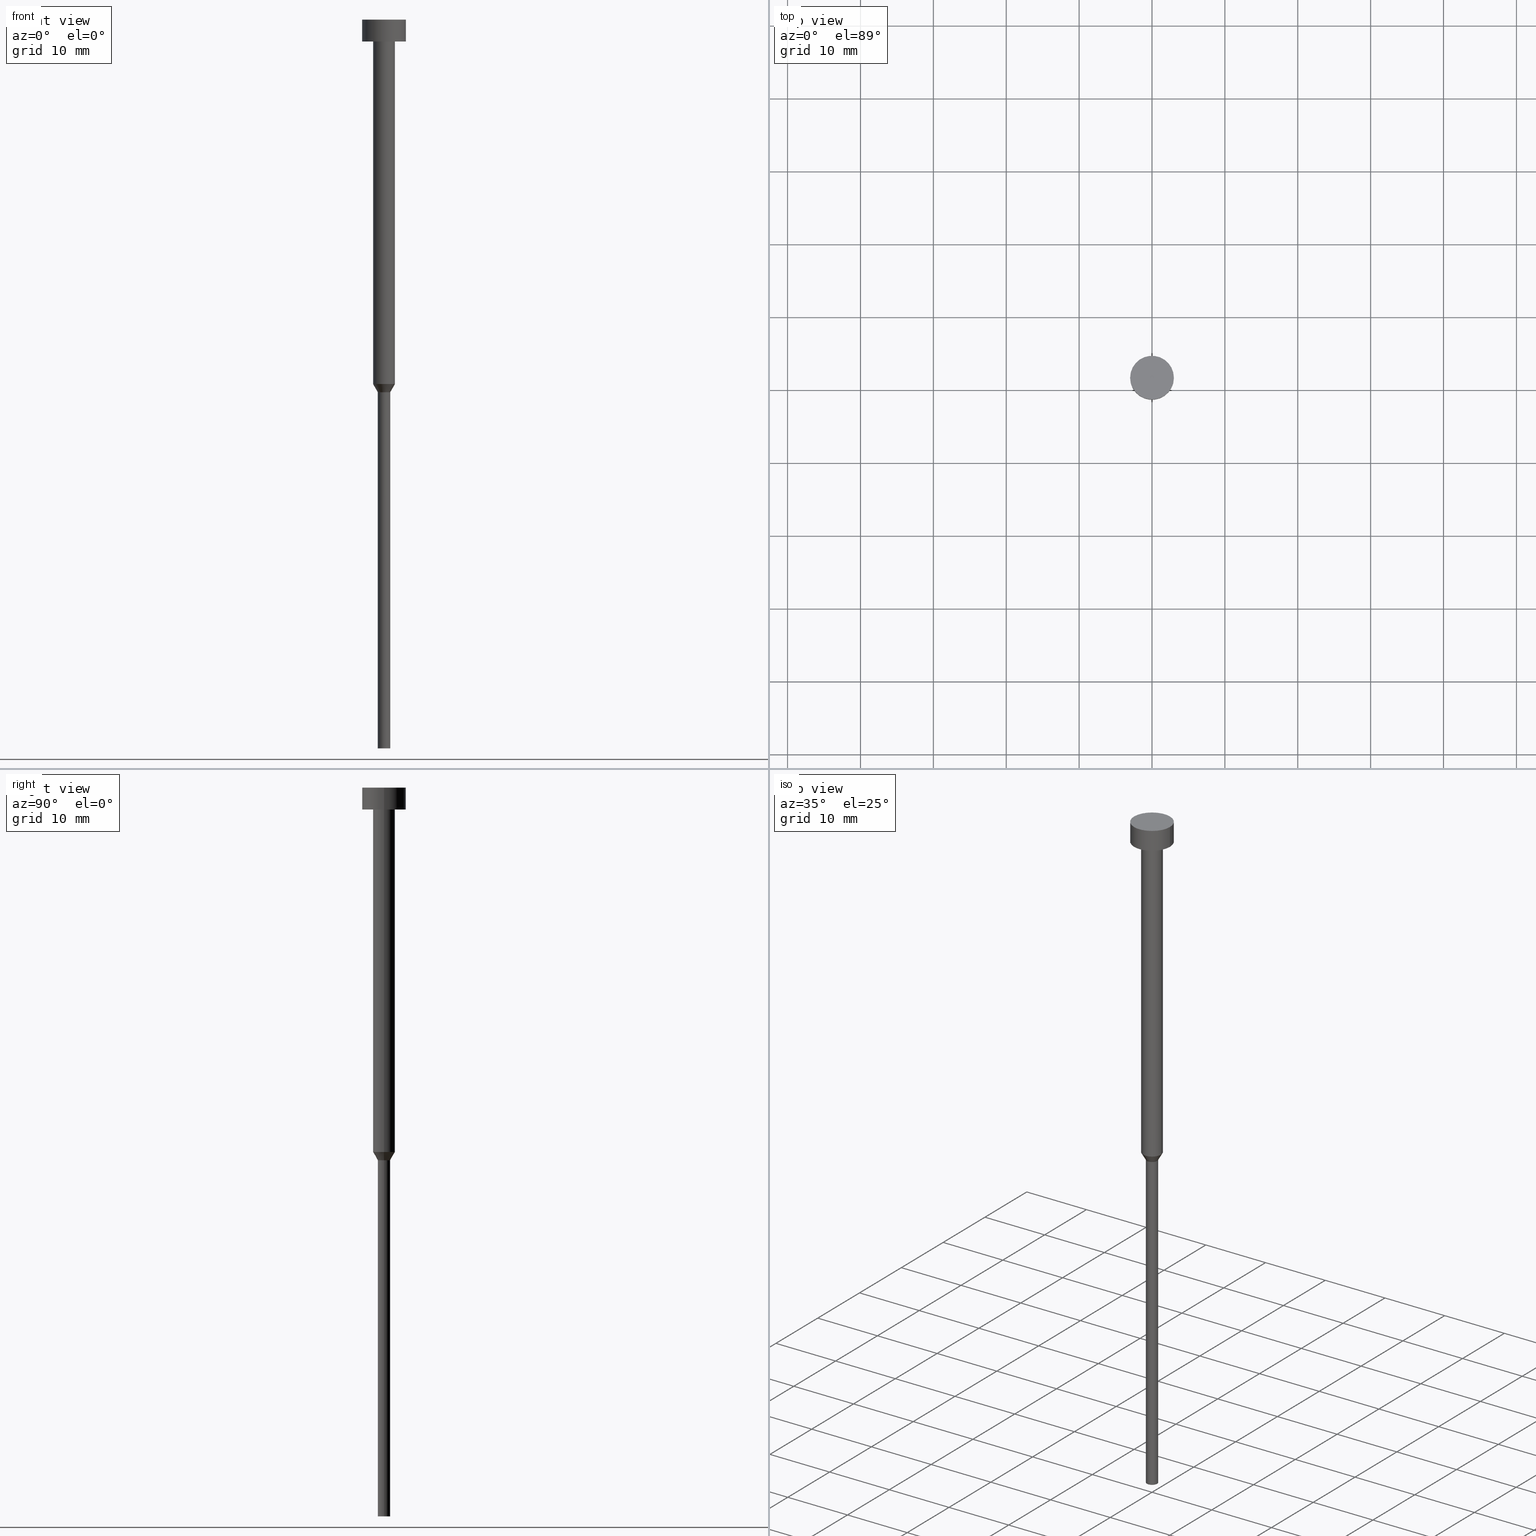
[diagram: canonical four-view strip — front | top / right | iso, engineering-drawing reading convention]
A machine part, canonical four-view strip (front | top / right | iso — engineering-drawing reading convention). The complete STEP part file that produces these views, byte-faithful:
ISO-10303-21;
HEADER;
FILE_DESCRIPTION (( 'STEP AP203' ),
    '1' );
FILE_NAME ('e03b.STEP',
    '2023-02-13T10:56:45',
    ( '' ),
    ( '' ),
    'SwSTEP 2.0',
    'SolidWorks 2019',
    '' );
FILE_SCHEMA (( 'CONFIG_CONTROL_DESIGN' ));
ENDSEC;

DATA;
#1 = DIRECTION ( 'NONE',  ( -0.000000000000000000, -0.000000000000000000, 1.000000000000000000 ) ) ;
#2 = DIRECTION ( 'NONE',  ( -0.000000000000000000, -0.000000000000000000, 1.000000000000000000 ) ) ;
#3 = CARTESIAN_POINT ( 'NONE',  ( 0.000000000000000000, 0.000000000000000000, -50.00000000000000000 ) ) ;
#4 = DIRECTION ( 'NONE',  ( -0.000000000000000000, -0.000000000000000000, 1.000000000000000000 ) ) ;
#5 = ORIENTED_EDGE ( 'NONE', *, *, #164, .F. ) ;
#6 = CIRCLE ( 'NONE', #282, 0.8499999999999998668 ) ;
#7 = CYLINDRICAL_SURFACE ( 'NONE', #74, 0.8499999999999998668 ) ;
#8 = CARTESIAN_POINT ( 'NONE',  ( -3.000000000000000000, 3.673940397442059868E-16, 0.000000000000000000 ) ) ;
#9 = SECURITY_CLASSIFICATION_LEVEL ( 'unclassified' ) ;
#10 = CC_DESIGN_PERSON_AND_ORGANIZATION_ASSIGNMENT ( #211, #180, ( #212 ) ) ;
#11 = ORIENTED_EDGE ( 'NONE', *, *, #23, .T. ) ;
#12 = EDGE_CURVE ( 'NONE', #46, #157, #241, .T. ) ;
#13 =( NAMED_UNIT ( * ) PLANE_ANGLE_UNIT ( ) SI_UNIT ( $, .RADIAN. ) );
#14 = CC_DESIGN_PERSON_AND_ORGANIZATION_ASSIGNMENT ( #283, #68, ( #209 ) ) ;
#15 = DATE_TIME_ROLE ( 'creation_date' ) ;
#16 = VERTEX_POINT ( 'NONE', #337 ) ;
#17 = ORIENTED_EDGE ( 'NONE', *, *, #102, .F. ) ;
#18 = AXIS2_PLACEMENT_3D ( 'NONE', #303, #38, #253 ) ;
#19 = CARTESIAN_POINT ( 'NONE',  ( 0.000000000000000000, 0.000000000000000000, -50.00000000000000000 ) ) ;
#20 = ADVANCED_FACE ( 'NONE', ( #181 ), #171, .T. ) ;
#21 = EDGE_LOOP ( 'NONE', ( #50, #244 ) ) ;
#22 = ORIENTED_EDGE ( 'NONE', *, *, #293, .T. ) ;
#23 = EDGE_CURVE ( 'NONE', #16, #46, #120, .T. ) ;
#24 = PLANE ( 'NONE',  #196 ) ;
#25 = LINE ( 'NONE', #275, #286 ) ;
#26 = CC_DESIGN_SECURITY_CLASSIFICATION ( #185, ( #212 ) ) ;
#27 = CYLINDRICAL_SURFACE ( 'NONE', #93, 1.500000000000000000 ) ;
#28 = CARTESIAN_POINT ( 'NONE',  ( -0.8499999999999998668, 1.040949779275250017E-16, 0.000000000000000000 ) ) ;
#29 = DIRECTION ( 'NONE',  ( -0.000000000000000000, -0.000000000000000000, 1.000000000000000000 ) ) ;
#30 = FACE_OUTER_BOUND ( 'NONE', #44, .T. ) ;
#31 = EDGE_CURVE ( 'NONE', #234, #76, #128, .T. ) ;
#32 = DIRECTION ( 'NONE',  ( -1.000000000000000000, 0.000000000000000000, -0.000000000000000000 ) ) ;
#33 = LINE ( 'NONE', #8, #315 ) ;
#34 = DIRECTION ( 'NONE',  ( -0.000000000000000000, -0.000000000000000000, 1.000000000000000000 ) ) ;
#35 = CARTESIAN_POINT ( 'NONE',  ( 0.000000000000000000, 0.000000000000000000, -51.12583302491977122 ) ) ;
#36 = PLANE ( 'NONE',  #48 ) ;
#37 = VERTEX_POINT ( 'NONE', #330 ) ;
#38 = DIRECTION ( 'NONE',  ( 0.000000000000000000, 0.000000000000000000, 1.000000000000000000 ) ) ;
#39 = APPROVAL_DATE_TIME ( #177, #75 ) ;
#40 = APPROVAL_ROLE ( '' ) ;
#41 = APPROVAL_DATE_TIME ( #335, #336 ) ;
#42 = APPROVAL_STATUS ( 'not_yet_approved' ) ;
#43 = AXIS2_PLACEMENT_3D ( 'NONE', #79, #327, #243 ) ;
#44 = EDGE_LOOP ( 'NONE', ( #214, #137, #264, #89 ) ) ;
#45 = DATE_TIME_ROLE ( 'classification_date' ) ;
#46 = VERTEX_POINT ( 'NONE', #91 ) ;
#47 = CC_DESIGN_PERSON_AND_ORGANIZATION_ASSIGNMENT ( #146, #280, ( #187 ) ) ;
#48 = AXIS2_PLACEMENT_3D ( 'NONE', #145, #252, #153 ) ;
#49 = CC_DESIGN_APPROVAL ( #336, ( #212 ) ) ;
#50 = ORIENTED_EDGE ( 'NONE', *, *, #106, .T. ) ;
#51 = DIRECTION ( 'NONE',  ( 1.000000000000000000, 0.000000000000000000, 0.000000000000000000 ) ) ;
#52 = FACE_OUTER_BOUND ( 'NONE', #349, .T. ) ;
#53 = DIRECTION ( 'NONE',  ( -0.000000000000000000, -0.000000000000000000, 1.000000000000000000 ) ) ;
#54 = DESIGN_CONTEXT ( 'detailed design', #310, 'design' ) ;
#55 = CARTESIAN_POINT ( 'NONE',  ( 0.8499999999999998668, 0.000000000000000000, -51.12583302491977122 ) ) ;
#56 = EDGE_LOOP ( 'NONE', ( #288, #115 ) ) ;
#57 = ADVANCED_FACE ( 'NONE', ( #203 ), #36, .T. ) ;
#58 = DIRECTION ( 'NONE',  ( 0.000000000000000000, 0.000000000000000000, -1.000000000000000000 ) ) ;
#59 = CC_DESIGN_PERSON_AND_ORGANIZATION_ASSIGNMENT ( #229, #132, ( #185 ) ) ;
#60 = CARTESIAN_POINT ( 'NONE',  ( 0.000000000000000000, 0.000000000000000000, -3.673940397442059868E-16 ) ) ;
#61 = MANIFOLD_SOLID_BREP ( 'Rotovat1', #62 ) ;
#62 = CLOSED_SHELL ( 'NONE', ( #66, #351, #206, #179, #86, #175, #20, #341, #307, #268, #57 ) ) ;
#63 = APPROVAL_ROLE ( '' ) ;
#64 = VERTEX_POINT ( 'NONE', #216 ) ;
#65 = CYLINDRICAL_SURFACE ( 'NONE', #84, 1.500000000000000000 ) ;
#66 = ADVANCED_FACE ( 'NONE', ( #30 ), #96, .T. ) ;
#67 = CARTESIAN_POINT ( 'NONE',  ( 0.000000000000000000, 0.000000000000000000, -3.673940397442059868E-16 ) ) ;
#68 = PERSON_AND_ORGANIZATION_ROLE ( 'creator' ) ;
#69 = DIRECTION ( 'NONE',  ( 1.000000000000000000, 0.000000000000000000, 0.000000000000000000 ) ) ;
#70 = CARTESIAN_POINT ( 'NONE',  ( 3.000000000000000000, 0.000000000000000000, -3.000000000000000888 ) ) ;
#71 = DATE_AND_TIME ( #240, #306 ) ;
#72 = ORIENTED_EDGE ( 'NONE', *, *, #325, .T. ) ;
#73 = ORIENTED_EDGE ( 'NONE', *, *, #199, .T. ) ;
#74 = AXIS2_PLACEMENT_3D ( 'NONE', #139, #1, #224 ) ;
#75 = APPROVAL ( #123, 'NEUR�EN�' ) ;
#76 = VERTEX_POINT ( 'NONE', #304 ) ;
#77 = CIRCLE ( 'NONE', #348, 1.500000000000000000 ) ;
#78 = EDGE_CURVE ( 'NONE', #197, #266, #220, .T. ) ;
#79 = CARTESIAN_POINT ( 'NONE',  ( 0.000000000000000000, 0.000000000000000000, 0.000000000000000000 ) ) ;
#80 = EDGE_CURVE ( 'NONE', #233, #37, #154, .T. ) ;
#81 = DIRECTION ( 'NONE',  ( -0.000000000000000000, -0.000000000000000000, 1.000000000000000000 ) ) ;
#82 = CARTESIAN_POINT ( 'NONE',  ( 3.000000000000000000, 0.000000000000000000, -3.673940397442059868E-16 ) ) ;
#83 = ORIENTED_EDGE ( 'NONE', *, *, #305, .F. ) ;
#84 = AXIS2_PLACEMENT_3D ( 'NONE', #333, #98, #174 ) ;
#85 = DIRECTION ( 'NONE',  ( 1.000000000000000000, 0.000000000000000000, 0.000000000000000000 ) ) ;
#86 = ADVANCED_FACE ( 'NONE', ( #172 ), #278, .T. ) ;
#87 = CARTESIAN_POINT ( 'NONE',  ( 0.000000000000000000, 0.000000000000000000, -100.0000000000000000 ) ) ;
#88 = DIRECTION ( 'NONE',  ( -0.000000000000000000, -0.000000000000000000, 1.000000000000000000 ) ) ;
#89 = ORIENTED_EDGE ( 'NONE', *, *, #169, .F. ) ;
#90 = CARTESIAN_POINT ( 'NONE',  ( 0.000000000000000000, 0.000000000000000000, -3.000000000000000888 ) ) ;
#91 = CARTESIAN_POINT ( 'NONE',  ( -1.500000000000000000, 1.836970198721029934E-16, -3.000000000000000888 ) ) ;
#92 = AXIS2_PLACEMENT_3D ( 'NONE', #208, #140, #69 ) ;
#93 = AXIS2_PLACEMENT_3D ( 'NONE', #270, #308, #207 ) ;
#94 = EDGE_CURVE ( 'NONE', #340, #157, #25, .T. ) ;
#95 = CALENDAR_DATE ( 2023, 13, 2 ) ;
#96 = CYLINDRICAL_SURFACE ( 'NONE', #92, 3.000000000000000000 ) ;
#97 = ORIENTED_EDGE ( 'NONE', *, *, #161, .T. ) ;
#98 = DIRECTION ( 'NONE',  ( -0.000000000000000000, -0.000000000000000000, 1.000000000000000000 ) ) ;
#99 = VECTOR ( 'NONE', #334, 1000.000000000000000 ) ;
#100 = PERSON_AND_ORGANIZATION_ROLE ( 'design_supplier' ) ;
#101 = CARTESIAN_POINT ( 'NONE',  ( 0.000000000000000000, 0.000000000000000000, -3.000000000000000888 ) ) ;
#102 = EDGE_CURVE ( 'NONE', #64, #197, #33, .T. ) ;
#103 = VECTOR ( 'NONE', #134, 1000.000000000000114 ) ;
#104 = ORIENTED_EDGE ( 'NONE', *, *, #94, .T. ) ;
#105 = ORIENTED_EDGE ( 'NONE', *, *, #312, .F. ) ;
#106 = EDGE_CURVE ( 'NONE', #157, #46, #193, .T. ) ;
#107 = DIRECTION ( 'NONE',  ( -0.000000000000000000, -0.000000000000000000, 1.000000000000000000 ) ) ;
#108 = ORIENTED_EDGE ( 'NONE', *, *, #325, .F. ) ;
#109 = AXIS2_PLACEMENT_3D ( 'NONE', #191, #274, #85 ) ;
#110 = CARTESIAN_POINT ( 'NONE',  ( 0.000000000000000000, 0.000000000000000000, -51.12583302491977122 ) ) ;
#111 = CARTESIAN_POINT ( 'NONE',  ( 1.500000000000000000, 0.000000000000000000, -50.00000000000000000 ) ) ;
#112 = DIRECTION ( 'NONE',  ( 1.000000000000000000, 0.000000000000000000, 0.000000000000000000 ) ) ;
#113 = AXIS2_PLACEMENT_3D ( 'NONE', #101, #125, #314 ) ;
#114 = DIRECTION ( 'NONE',  ( -0.000000000000000000, -0.000000000000000000, 1.000000000000000000 ) ) ;
#115 = ORIENTED_EDGE ( 'NONE', *, *, #80, .F. ) ;
#116 = APPLICATION_PROTOCOL_DEFINITION ( 'international standard', 'config_control_design', 1994, #310 ) ;
#117 = DIRECTION ( 'NONE',  ( 1.000000000000000000, 0.000000000000000000, 0.000000000000000000 ) ) ;
#118 = DIRECTION ( 'NONE',  ( -0.000000000000000000, -0.000000000000000000, 1.000000000000000000 ) ) ;
#119 = AXIS2_PLACEMENT_3D ( 'NONE', #226, #29, #323 ) ;
#120 = LINE ( 'NONE', #231, #99 ) ;
#121 = ORIENTED_EDGE ( 'NONE', *, *, #106, .F. ) ;
#122 = PERSON_AND_ORGANIZATION ( #322, #221 ) ;
#123 = APPROVAL_STATUS ( 'not_yet_approved' ) ;
#124 = LOCAL_TIME ( 11, 56, 45.00000000000000000, #232 ) ;
#125 = DIRECTION ( 'NONE',  ( -0.000000000000000000, -0.000000000000000000, 1.000000000000000000 ) ) ;
#126 = ORIENTED_EDGE ( 'NONE', *, *, #219, .T. ) ;
#127 = EDGE_LOOP ( 'NONE', ( #344, #72, #83, #311 ) ) ;
#128 = CIRCLE ( 'NONE', #320, 0.8499999999999998668 ) ;
#129 = CALENDAR_DATE ( 2023, 13, 2 ) ;
#130 = EDGE_LOOP ( 'NONE', ( #17, #262, #261, #159 ) ) ;
#131 = APPROVAL_PERSON_ORGANIZATION ( #183, #75, #63 ) ;
#132 = PERSON_AND_ORGANIZATION_ROLE ( 'classification_officer' ) ;
#133 = ORIENTED_EDGE ( 'NONE', *, *, #258, .T. ) ;
#134 = DIRECTION ( 'NONE',  ( -0.5000000000000011102, 6.123233995736779594E-17, 0.8660254037844379305 ) ) ;
#135 = DIRECTION ( 'NONE',  ( -0.000000000000000000, -0.000000000000000000, 1.000000000000000000 ) ) ;
#136 = CIRCLE ( 'NONE', #326, 3.000000000000000000 ) ;
#137 = ORIENTED_EDGE ( 'NONE', *, *, #102, .T. ) ;
#138 = LINE ( 'NONE', #321, #103 ) ;
#139 = CARTESIAN_POINT ( 'NONE',  ( 0.000000000000000000, 0.000000000000000000, 0.000000000000000000 ) ) ;
#140 = DIRECTION ( 'NONE',  ( -0.000000000000000000, -0.000000000000000000, 1.000000000000000000 ) ) ;
#141 = CARTESIAN_POINT ( 'NONE',  ( 0.000000000000000000, 0.000000000000000000, -3.000000000000000888 ) ) ;
#142 = CARTESIAN_POINT ( 'NONE',  ( 0.000000000000000000, 0.000000000000000000, 0.000000000000000000 ) ) ;
#143 = CIRCLE ( 'NONE', #119, 1.500000000000000000 ) ;
#144 = CARTESIAN_POINT ( 'NONE',  ( 0.8499999999999998668, 0.000000000000000000, 0.000000000000000000 ) ) ;
#145 = CARTESIAN_POINT ( 'NONE',  ( 0.000000000000000000, 0.000000000000000000, -1.836970198721029934E-16 ) ) ;
#146 = PERSON_AND_ORGANIZATION ( #322, #221 ) ;
#147 = DIRECTION ( 'NONE',  ( 1.000000000000000000, 0.000000000000000000, 0.000000000000000000 ) ) ;
#148 = CIRCLE ( 'NONE', #277, 0.8499999999999998668 ) ;
#149 = APPROVAL ( #42, 'NEUR�EN�' ) ;
#150 = PERSON_AND_ORGANIZATION ( #322, #221 ) ;
#151 = ORIENTED_EDGE ( 'NONE', *, *, #94, .F. ) ;
#152 = PRODUCT_DEFINITION_SHAPE ( 'NONE', 'NONE',  #209 ) ;
#153 = DIRECTION ( 'NONE',  ( 1.000000000000000000, 0.000000000000000000, 0.000000000000000000 ) ) ;
#154 = CIRCLE ( 'NONE', #289, 0.8499999999999998668 ) ;
#155 = VECTOR ( 'NONE', #324, 1000.000000000000000 ) ;
#156 = APPROVAL_DATE_TIME ( #71, #149 ) ;
#157 = VERTEX_POINT ( 'NONE', #272 ) ;
#158 = EDGE_LOOP ( 'NONE', ( #265, #218 ) ) ;
#159 = ORIENTED_EDGE ( 'NONE', *, *, #78, .F. ) ;
#160 = CARTESIAN_POINT ( 'NONE',  ( -3.000000000000000000, 3.673940397442059868E-16, -3.673940397442059868E-16 ) ) ;
#161 = EDGE_CURVE ( 'NONE', #233, #76, #184, .T. ) ;
#162 = FACE_OUTER_BOUND ( 'NONE', #130, .T. ) ;
#163 = CC_DESIGN_APPROVAL ( #75, ( #209 ) ) ;
#164 = EDGE_CURVE ( 'NONE', #76, #234, #148, .T. ) ;
#165 = DIRECTION ( 'NONE',  ( 1.000000000000000000, 0.000000000000000000, 0.000000000000000000 ) ) ;
#166 = CARTESIAN_POINT ( 'NONE',  ( 0.000000000000000000, 0.000000000000000000, -100.0000000000000000 ) ) ;
#167 = UNCERTAINTY_MEASURE_WITH_UNIT (LENGTH_MEASURE( 1.000000000000000082E-05 ), #331, 'distance_accuracy_value', 'NONE');
#168 = CARTESIAN_POINT ( 'NONE',  ( 0.000000000000000000, -3.000000000000000000, -3.000000000000000888 ) ) ;
#169 = EDGE_CURVE ( 'NONE', #343, #266, #352, .T. ) ;
#170 = DIRECTION ( 'NONE',  ( 1.000000000000000000, 0.000000000000000000, 0.000000000000000000 ) ) ;
#171 = CONICAL_SURFACE ( 'NONE', #238, 1.500000000000000000, 0.5235987755983001479 ) ;
#172 = FACE_OUTER_BOUND ( 'NONE', #56, .T. ) ;
#173 = VECTOR ( 'NONE', #107, 1000.000000000000000 ) ;
#174 = DIRECTION ( 'NONE',  ( 1.000000000000000000, 0.000000000000000000, 0.000000000000000000 ) ) ;
#175 = ADVANCED_FACE ( 'NONE', ( #354 ), #245, .T. ) ;
#176 = DIRECTION ( 'NONE',  ( -0.000000000000000000, -0.000000000000000000, 1.000000000000000000 ) ) ;
#177 = DATE_AND_TIME ( #95, #254 ) ;
#178 = DIRECTION ( 'NONE',  ( 1.000000000000000000, 0.000000000000000000, 0.000000000000000000 ) ) ;
#179 = ADVANCED_FACE ( 'NONE', ( #246 ), #7, .T. ) ;
#180 = PERSON_AND_ORGANIZATION_ROLE ( 'creator' ) ;
#181 = FACE_OUTER_BOUND ( 'NONE', #317, .T. ) ;
#182 = DIRECTION ( 'NONE',  ( -0.000000000000000000, -0.000000000000000000, 1.000000000000000000 ) ) ;
#183 = PERSON_AND_ORGANIZATION ( #322, #221 ) ;
#184 = LINE ( 'NONE', #28, #195 ) ;
#185 = SECURITY_CLASSIFICATION ( '', '', #9 ) ;
#186 = ORIENTED_EDGE ( 'NONE', *, *, #161, .F. ) ;
#187 = PRODUCT ( 'e03b', 'e03b', '', ( #302 ) ) ;
#188 = ORIENTED_EDGE ( 'NONE', *, *, #31, .F. ) ;
#189 = PRODUCT_RELATED_PRODUCT_CATEGORY ( 'detail', '', ( #187 ) ) ;
#190 = APPROVAL_PERSON_ORGANIZATION ( #122, #336, #40 ) ;
#191 = CARTESIAN_POINT ( 'NONE',  ( 0.000000000000000000, 0.000000000000000000, -50.00000000000000000 ) ) ;
#192 = FACE_OUTER_BOUND ( 'NONE', #158, .T. ) ;
#193 = CIRCLE ( 'NONE', #346, 1.500000000000000000 ) ;
#194 = DIRECTION ( 'NONE',  ( 1.000000000000000000, 0.000000000000000000, 0.000000000000000000 ) ) ;
#195 = VECTOR ( 'NONE', #114, 1000.000000000000000 ) ;
#196 = AXIS2_PLACEMENT_3D ( 'NONE', #168, #58, #32 ) ;
#197 = VERTEX_POINT ( 'NONE', #160 ) ;
#198 = CARTESIAN_POINT ( 'NONE',  ( 0.000000000000000000, 0.000000000000000000, -3.000000000000000888 ) ) ;
#199 = EDGE_CURVE ( 'NONE', #234, #340, #267, .T. ) ;
#200 = DIRECTION ( 'NONE',  ( -0.000000000000000000, -0.000000000000000000, 1.000000000000000000 ) ) ;
#201 = DATE_AND_TIME ( #255, #259 ) ;
#202 = AXIS2_PLACEMENT_3D ( 'NONE', #309, #287, #213 ) ;
#203 = FACE_OUTER_BOUND ( 'NONE', #257, .T. ) ;
#204 = AXIS2_PLACEMENT_3D ( 'NONE', #60, #34, #112 ) ;
#205 = APPLICATION_PROTOCOL_DEFINITION ( 'international standard', 'config_control_design', 1994, #290 ) ;
#206 = ADVANCED_FACE ( 'NONE', ( #296 ), #242, .T. ) ;
#207 = DIRECTION ( 'NONE',  ( 1.000000000000000000, 0.000000000000000000, 0.000000000000000000 ) ) ;
#208 = CARTESIAN_POINT ( 'NONE',  ( 0.000000000000000000, 0.000000000000000000, 0.000000000000000000 ) ) ;
#209 = PRODUCT_DEFINITION ( 'NEZN�M�', '', #212, #54 ) ;
#210 = EDGE_LOOP ( 'NONE', ( #186, #279, #256, #5 ) ) ;
#211 = PERSON_AND_ORGANIZATION ( #322, #221 ) ;
#212 = PRODUCT_DEFINITION_FORMATION_WITH_SPECIFIED_SOURCE ( 'LIBOVOLN�', '', #187, .NOT_KNOWN. ) ;
#213 = DIRECTION ( 'NONE',  ( -1.000000000000000000, 0.000000000000000000, -0.000000000000000000 ) ) ;
#214 = ORIENTED_EDGE ( 'NONE', *, *, #355, .T. ) ;
#215 = AXIS2_PLACEMENT_3D ( 'NONE', #142, #81, #170 ) ;
#216 = CARTESIAN_POINT ( 'NONE',  ( -3.000000000000000000, 3.673940397442059868E-16, -3.000000000000000888 ) ) ;
#217 = EDGE_LOOP ( 'NONE', ( #236, #11, #121, #151 ) ) ;
#218 = ORIENTED_EDGE ( 'NONE', *, *, #284, .F. ) ;
#219 = EDGE_CURVE ( 'NONE', #37, #233, #6, .T. ) ;
#220 = CIRCLE ( 'NONE', #294, 3.000000000000000000 ) ;
#221 = ORGANIZATION ( 'NEUR�EN�', 'NEUR�EN�', '' ) ;
#222 = DIRECTION ( 'NONE',  ( 1.000000000000000000, 0.000000000000000000, 0.000000000000000000 ) ) ;
#223 = AXIS2_PLACEMENT_3D ( 'NONE', #198, #271, #51 ) ;
#224 = DIRECTION ( 'NONE',  ( 1.000000000000000000, 0.000000000000000000, 0.000000000000000000 ) ) ;
#225 = DIRECTION ( 'NONE',  ( 0.5000000000000011102, 0.000000000000000000, 0.8660254037844379305 ) ) ;
#226 = CARTESIAN_POINT ( 'NONE',  ( 0.000000000000000000, 0.000000000000000000, -50.00000000000000000 ) ) ;
#227 = CIRCLE ( 'NONE', #204, 3.000000000000000000 ) ;
#228 = CARTESIAN_POINT ( 'NONE',  ( -0.8499999999999998668, 1.040949779275250017E-16, -100.0000000000000000 ) ) ;
#229 = PERSON_AND_ORGANIZATION ( #322, #221 ) ;
#230 = DIRECTION ( 'NONE',  ( 1.000000000000000000, 0.000000000000000000, 0.000000000000000000 ) ) ;
#231 = CARTESIAN_POINT ( 'NONE',  ( -1.500000000000000000, 1.836970198721029934E-16, 0.000000000000000000 ) ) ;
#232 = COORDINATED_UNIVERSAL_TIME_OFFSET ( 1, 0, .AHEAD. ) ;
#233 = VERTEX_POINT ( 'NONE', #228 ) ;
#234 = VERTEX_POINT ( 'NONE', #55 ) ;
#235 = SHAPE_DEFINITION_REPRESENTATION ( #152, #263 ) ;
#236 = ORIENTED_EDGE ( 'NONE', *, *, #305, .T. ) ;
#237 = COORDINATED_UNIVERSAL_TIME_OFFSET ( 1, 0, .AHEAD. ) ;
#238 = AXIS2_PLACEMENT_3D ( 'NONE', #19, #176, #147 ) ;
#239 = APPROVAL_PERSON_ORGANIZATION ( #313, #149, #316 ) ;
#240 = CALENDAR_DATE ( 2023, 13, 2 ) ;
#241 = CIRCLE ( 'NONE', #113, 1.500000000000000000 ) ;
#242 = CONICAL_SURFACE ( 'NONE', #109, 1.500000000000000000, 0.5235987755983001479 ) ;
#243 = DIRECTION ( 'NONE',  ( 1.000000000000000000, 0.000000000000000000, 0.000000000000000000 ) ) ;
#244 = ORIENTED_EDGE ( 'NONE', *, *, #12, .T. ) ;
#245 = CYLINDRICAL_SURFACE ( 'NONE', #43, 0.8499999999999998668 ) ;
#246 = FACE_OUTER_BOUND ( 'NONE', #350, .T. ) ;
#247 = LINE ( 'NONE', #144, #173 ) ;
#248 = CC_DESIGN_PERSON_AND_ORGANIZATION_ASSIGNMENT ( #150, #100, ( #212 ) ) ;
#249 = COORDINATED_UNIVERSAL_TIME_OFFSET ( 1, 0, .AHEAD. ) ;
#250 = DIRECTION ( 'NONE',  ( -0.000000000000000000, -0.000000000000000000, 1.000000000000000000 ) ) ;
#251 = DIRECTION ( 'NONE',  ( 1.000000000000000000, 0.000000000000000000, 0.000000000000000000 ) ) ;
#252 = DIRECTION ( 'NONE',  ( 0.000000000000000000, -0.000000000000000000, 1.000000000000000000 ) ) ;
#253 = DIRECTION ( 'NONE',  ( 1.000000000000000000, 0.000000000000000000, 0.000000000000000000 ) ) ;
#254 = LOCAL_TIME ( 11, 56, 45.00000000000000000, #338 ) ;
#255 = CALENDAR_DATE ( 2023, 13, 2 ) ;
#256 = ORIENTED_EDGE ( 'NONE', *, *, #312, .T. ) ;
#257 = EDGE_LOOP ( 'NONE', ( #22, #260 ) ) ;
#258 = EDGE_CURVE ( 'NONE', #16, #340, #77, .T. ) ;
#259 = LOCAL_TIME ( 11, 56, 45.00000000000000000, #249 ) ;
#260 = ORIENTED_EDGE ( 'NONE', *, *, #78, .T. ) ;
#261 = ORIENTED_EDGE ( 'NONE', *, *, #169, .T. ) ;
#262 = ORIENTED_EDGE ( 'NONE', *, *, #284, .T. ) ;
#263 = ADVANCED_BREP_SHAPE_REPRESENTATION ( 'e03b', ( #61, #18 ), #332 ) ;
#264 = ORIENTED_EDGE ( 'NONE', *, *, #293, .F. ) ;
#265 = ORIENTED_EDGE ( 'NONE', *, *, #355, .F. ) ;
#266 = VERTEX_POINT ( 'NONE', #82 ) ;
#267 = LINE ( 'NONE', #111, #295 ) ;
#268 = ADVANCED_FACE ( 'NONE', ( #162 ), #291, .T. ) ;
#269 = CIRCLE ( 'NONE', #223, 3.000000000000000000 ) ;
#270 = CARTESIAN_POINT ( 'NONE',  ( 0.000000000000000000, 0.000000000000000000, 0.000000000000000000 ) ) ;
#271 = DIRECTION ( 'NONE',  ( -0.000000000000000000, -0.000000000000000000, 1.000000000000000000 ) ) ;
#272 = CARTESIAN_POINT ( 'NONE',  ( 1.500000000000000000, 0.000000000000000000, -3.000000000000000888 ) ) ;
#273 = CC_DESIGN_DATE_AND_TIME_ASSIGNMENT ( #342, #45, ( #185 ) ) ;
#274 = DIRECTION ( 'NONE',  ( -0.000000000000000000, -0.000000000000000000, 1.000000000000000000 ) ) ;
#275 = CARTESIAN_POINT ( 'NONE',  ( 1.500000000000000000, 0.000000000000000000, 0.000000000000000000 ) ) ;
#276 = CARTESIAN_POINT ( 'NONE',  ( 3.000000000000000000, 0.000000000000000000, 0.000000000000000000 ) ) ;
#277 = AXIS2_PLACEMENT_3D ( 'NONE', #110, #200, #194 ) ;
#278 = PLANE ( 'NONE',  #202 ) ;
#279 = ORIENTED_EDGE ( 'NONE', *, *, #80, .T. ) ;
#280 = PERSON_AND_ORGANIZATION_ROLE ( 'design_owner' ) ;
#281 = FACE_OUTER_BOUND ( 'NONE', #217, .T. ) ;
#282 = AXIS2_PLACEMENT_3D ( 'NONE', #166, #328, #222 ) ;
#283 = PERSON_AND_ORGANIZATION ( #322, #221 ) ;
#284 = EDGE_CURVE ( 'NONE', #64, #343, #269, .T. ) ;
#285 = CALENDAR_DATE ( 2023, 13, 2 ) ;
#286 = VECTOR ( 'NONE', #135, 1000.000000000000000 ) ;
#287 = DIRECTION ( 'NONE',  ( 0.000000000000000000, 0.000000000000000000, -1.000000000000000000 ) ) ;
#288 = ORIENTED_EDGE ( 'NONE', *, *, #219, .F. ) ;
#289 = AXIS2_PLACEMENT_3D ( 'NONE', #87, #53, #165 ) ;
#290 = APPLICATION_CONTEXT ( 'configuration controlled 3d designs of mechanical parts and assemblies' ) ;
#291 = CYLINDRICAL_SURFACE ( 'NONE', #215, 3.000000000000000000 ) ;
#292 = CARTESIAN_POINT ( 'NONE',  ( 1.500000000000000000, 0.000000000000000000, -50.00000000000000000 ) ) ;
#293 = EDGE_CURVE ( 'NONE', #266, #197, #227, .T. ) ;
#294 = AXIS2_PLACEMENT_3D ( 'NONE', #67, #4, #178 ) ;
#295 = VECTOR ( 'NONE', #225, 1000.000000000000114 ) ;
#296 = FACE_OUTER_BOUND ( 'NONE', #127, .T. ) ;
#297 = CC_DESIGN_DATE_AND_TIME_ASSIGNMENT ( #201, #15, ( #209 ) ) ;
#298 = FACE_BOUND ( 'NONE', #21, .T. ) ;
#299 = DIRECTION ( 'NONE',  ( 1.000000000000000000, 0.000000000000000000, 0.000000000000000000 ) ) ;
#300 = APPROVAL_STATUS ( 'not_yet_approved' ) ;
#301 = LOCAL_TIME ( 11, 56, 45.00000000000000000, #237 ) ;
#302 = MECHANICAL_CONTEXT ( 'NONE', #290, 'mechanical' ) ;
#303 = CARTESIAN_POINT ( 'NONE',  ( 0.000000000000000000, 0.000000000000000000, 0.000000000000000000 ) ) ;
#304 = CARTESIAN_POINT ( 'NONE',  ( -0.8499999999999998668, 1.040949779275250017E-16, -51.12583302491977122 ) ) ;
#305 = EDGE_CURVE ( 'NONE', #340, #16, #143, .T. ) ;
#306 = LOCAL_TIME ( 11, 56, 45.00000000000000000, #319 ) ;
#307 = ADVANCED_FACE ( 'NONE', ( #298, #192 ), #24, .T. ) ;
#308 = DIRECTION ( 'NONE',  ( -0.000000000000000000, -0.000000000000000000, 1.000000000000000000 ) ) ;
#309 = CARTESIAN_POINT ( 'NONE',  ( 0.000000000000000000, 0.000000000000000000, -100.0000000000000000 ) ) ;
#310 = APPLICATION_CONTEXT ( 'configuration controlled 3d designs of mechanical parts and assemblies' ) ;
#311 = ORIENTED_EDGE ( 'NONE', *, *, #199, .F. ) ;
#312 = EDGE_CURVE ( 'NONE', #37, #234, #247, .T. ) ;
#313 = PERSON_AND_ORGANIZATION ( #322, #221 ) ;
#314 = DIRECTION ( 'NONE',  ( 1.000000000000000000, 0.000000000000000000, 0.000000000000000000 ) ) ;
#315 = VECTOR ( 'NONE', #2, 1000.000000000000000 ) ;
#316 = APPROVAL_ROLE ( '' ) ;
#317 = EDGE_LOOP ( 'NONE', ( #108, #345, #73, #353 ) ) ;
#318 = ORIENTED_EDGE ( 'NONE', *, *, #23, .F. ) ;
#319 = COORDINATED_UNIVERSAL_TIME_OFFSET ( 1, 0, .AHEAD. ) ;
#320 = AXIS2_PLACEMENT_3D ( 'NONE', #35, #250, #230 ) ;
#321 = CARTESIAN_POINT ( 'NONE',  ( -1.500000000000000000, 1.836970198721029934E-16, -50.00000000000000000 ) ) ;
#322 = PERSON ( 'NEUR�EN�', 'NEUR�EN�', 'NEUR�EN�', ('NEUR�EN�'), ('NEUR�EN�'), ('NEUR�EN�') ) ;
#323 = DIRECTION ( 'NONE',  ( 1.000000000000000000, 0.000000000000000000, 0.000000000000000000 ) ) ;
#324 = DIRECTION ( 'NONE',  ( -0.000000000000000000, -0.000000000000000000, 1.000000000000000000 ) ) ;
#325 = EDGE_CURVE ( 'NONE', #76, #16, #138, .T. ) ;
#326 = AXIS2_PLACEMENT_3D ( 'NONE', #90, #118, #251 ) ;
#327 = DIRECTION ( 'NONE',  ( -0.000000000000000000, -0.000000000000000000, 1.000000000000000000 ) ) ;
#328 = DIRECTION ( 'NONE',  ( -0.000000000000000000, -0.000000000000000000, 1.000000000000000000 ) ) ;
#329 =( NAMED_UNIT ( * ) SI_UNIT ( $, .STERADIAN. ) SOLID_ANGLE_UNIT ( ) );
#330 = CARTESIAN_POINT ( 'NONE',  ( 0.8499999999999998668, 0.000000000000000000, -100.0000000000000000 ) ) ;
#331 =( LENGTH_UNIT ( ) NAMED_UNIT ( * ) SI_UNIT ( .MILLI., .METRE. ) );
#332 =( GEOMETRIC_REPRESENTATION_CONTEXT ( 3 ) GLOBAL_UNCERTAINTY_ASSIGNED_CONTEXT ( ( #167 ) ) GLOBAL_UNIT_ASSIGNED_CONTEXT ( ( #331, #13, #329 ) ) REPRESENTATION_CONTEXT ( 'NONE', 'WORKASPACE' ) );
#333 = CARTESIAN_POINT ( 'NONE',  ( 0.000000000000000000, 0.000000000000000000, 0.000000000000000000 ) ) ;
#334 = DIRECTION ( 'NONE',  ( -0.000000000000000000, -0.000000000000000000, 1.000000000000000000 ) ) ;
#335 = DATE_AND_TIME ( #285, #124 ) ;
#336 = APPROVAL ( #300, 'NEUR�EN�' ) ;
#337 = CARTESIAN_POINT ( 'NONE',  ( -1.500000000000000000, 1.836970198721029934E-16, -50.00000000000000000 ) ) ;
#338 = COORDINATED_UNIVERSAL_TIME_OFFSET ( 1, 0, .AHEAD. ) ;
#339 = CC_DESIGN_APPROVAL ( #149, ( #185 ) ) ;
#340 = VERTEX_POINT ( 'NONE', #292 ) ;
#341 = ADVANCED_FACE ( 'NONE', ( #52 ), #27, .T. ) ;
#342 = DATE_AND_TIME ( #129, #301 ) ;
#343 = VERTEX_POINT ( 'NONE', #70 ) ;
#344 = ORIENTED_EDGE ( 'NONE', *, *, #31, .T. ) ;
#345 = ORIENTED_EDGE ( 'NONE', *, *, #164, .T. ) ;
#346 = AXIS2_PLACEMENT_3D ( 'NONE', #141, #182, #117 ) ;
#347 = ORIENTED_EDGE ( 'NONE', *, *, #12, .F. ) ;
#348 = AXIS2_PLACEMENT_3D ( 'NONE', #3, #88, #299 ) ;
#349 = EDGE_LOOP ( 'NONE', ( #318, #133, #104, #347 ) ) ;
#350 = EDGE_LOOP ( 'NONE', ( #126, #97, #188, #105 ) ) ;
#351 = ADVANCED_FACE ( 'NONE', ( #281 ), #65, .T. ) ;
#352 = LINE ( 'NONE', #276, #155 ) ;
#353 = ORIENTED_EDGE ( 'NONE', *, *, #258, .F. ) ;
#354 = FACE_OUTER_BOUND ( 'NONE', #210, .T. ) ;
#355 = EDGE_CURVE ( 'NONE', #343, #64, #136, .T. ) ;
ENDSEC;
END-ISO-10303-21;
